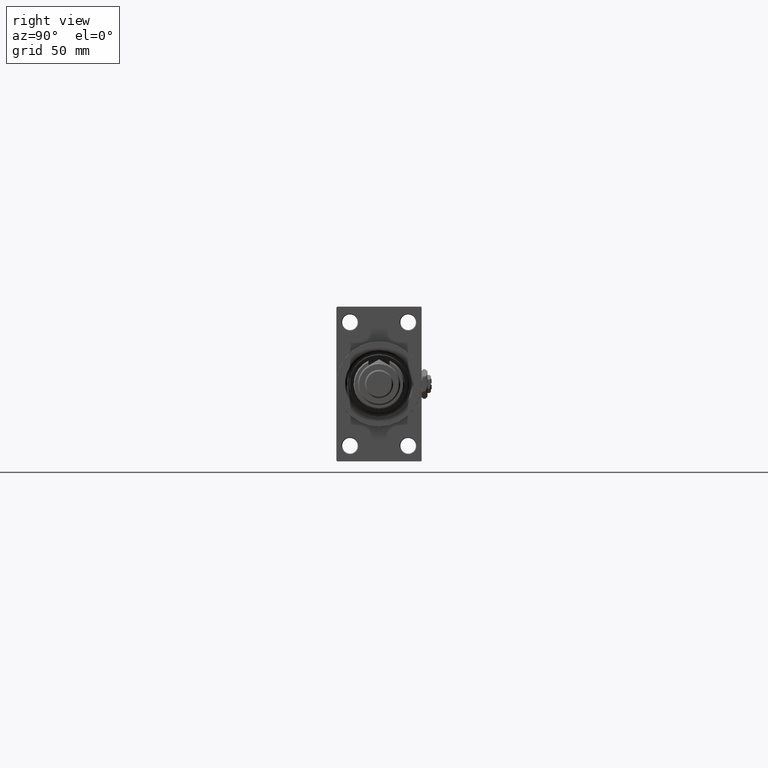
[diagram: clean part render]
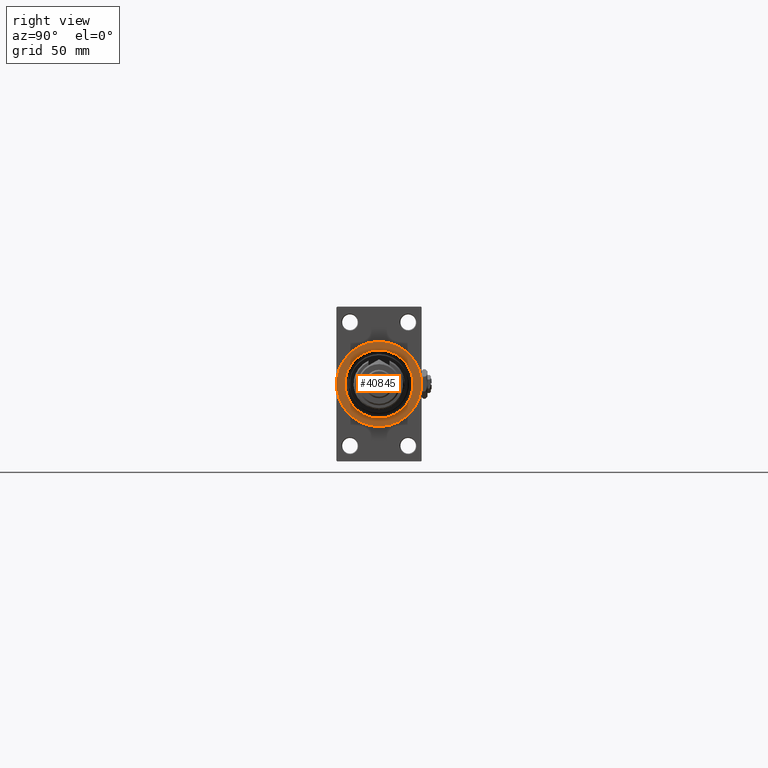
[diagram: same view with one face highlighted and labeled with its STEP entity id]
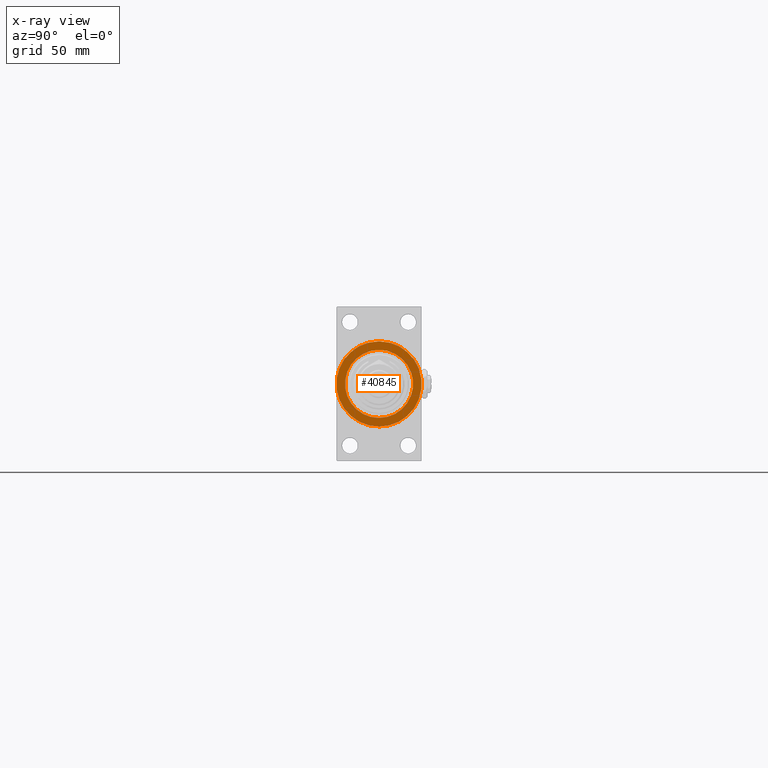
[diagram: x-ray of the same camera — body ghosted, the highlighted face saturated]
A machine part, right view. The second image highlights one B-rep face of the part: STEP entity #40845.
The next image is the same camera in x-ray: the body ghosted, the highlighted face saturated — about 0% of this face is hidden behind the body in this view.
In plain terms, the highlighted planar face has unit normal (1, 0, 0).
Its self-contained STEP definition (entity closure, byte-faithful):
#337 = CARTESIAN_POINT ( 'NONE',  ( 377.9999999999999432, 0.000000000000000000, 30.00000000000000000 ) ) ;
#1350 = VERTEX_POINT ( 'NONE', #16855 ) ;
#1602 = CARTESIAN_POINT ( 'NONE',  ( 377.9999999999999432, 0.000000000000000000, 0.000000000000000000 ) ) ;
#2200 = EDGE_CURVE ( 'NONE', #10081, #34722, #17458, .T. ) ;
#2407 = DIRECTION ( 'NONE',  ( 1.000000000000000000, 0.000000000000000000, 0.000000000000000000 ) ) ;
#6652 = DIRECTION ( 'NONE',  ( 0.000000000000000000, 0.000000000000000000, -1.000000000000000000 ) ) ;
#7155 = VERTEX_POINT ( 'NONE', #43635 ) ;
#9093 = EDGE_LOOP ( 'NONE', ( #27421, #25555 ) ) ;
#9485 = CARTESIAN_POINT ( 'NONE',  ( 377.9999999999999432, 0.000000000000000000, 0.000000000000000000 ) ) ;
#9916 = EDGE_CURVE ( 'NONE', #34722, #10081, #30306, .T. ) ;
#10081 = VERTEX_POINT ( 'NONE', #10326 ) ;
#10154 = CIRCLE ( 'NONE', #45742, 24.00000000000002487 ) ;
#10326 = CARTESIAN_POINT ( 'NONE',  ( 377.9999999999999432, 3.673940397442059178E-15, -30.00000000000000000 ) ) ;
#11401 = PLANE ( 'NONE',  #27948 ) ;
#14335 = FACE_OUTER_BOUND ( 'NONE', #9093, .T. ) ;
#15384 = CARTESIAN_POINT ( 'NONE',  ( 377.9999999999999432, 0.000000000000000000, 0.000000000000000000 ) ) ;
#16855 = CARTESIAN_POINT ( 'NONE',  ( 377.9999999999999432, 0.000000000000000000, -24.00000000000002487 ) ) ;
#17458 = CIRCLE ( 'NONE', #24210, 30.00000000000000000 ) ;
#17633 = AXIS2_PLACEMENT_3D ( 'NONE', #1602, #33947, #37411 ) ;
#24210 = AXIS2_PLACEMENT_3D ( 'NONE', #9485, #25649, #48736 ) ;
#24896 = ORIENTED_EDGE ( 'NONE', *, *, #41149, .T. ) ;
#25555 = ORIENTED_EDGE ( 'NONE', *, *, #2200, .T. ) ;
#25649 = DIRECTION ( 'NONE',  ( 1.000000000000000000, 0.000000000000000000, 0.000000000000000000 ) ) ;
#26926 = DIRECTION ( 'NONE',  ( -1.000000000000000000, -0.000000000000000000, -0.000000000000000000 ) ) ;
#27421 = ORIENTED_EDGE ( 'NONE', *, *, #9916, .T. ) ;
#27948 = AXIS2_PLACEMENT_3D ( 'NONE', #15384, #2407, #6652 ) ;
#30306 = CIRCLE ( 'NONE', #17633, 30.00000000000000000 ) ;
#30569 = EDGE_CURVE ( 'NONE', #1350, #7155, #33642, .T. ) ;
#32983 = CARTESIAN_POINT ( 'NONE',  ( 377.9999999999999432, 0.000000000000000000, 0.000000000000000000 ) ) ;
#33642 = CIRCLE ( 'NONE', #44656, 24.00000000000002487 ) ;
#33947 = DIRECTION ( 'NONE',  ( 1.000000000000000000, 0.000000000000000000, 0.000000000000000000 ) ) ;
#34017 = DIRECTION ( 'NONE',  ( -1.000000000000000000, -0.000000000000000000, -0.000000000000000000 ) ) ;
#34722 = VERTEX_POINT ( 'NONE', #337 ) ;
#35155 = EDGE_LOOP ( 'NONE', ( #44498, #24896 ) ) ;
#37411 = DIRECTION ( 'NONE',  ( 0.000000000000000000, 0.000000000000000000, -1.000000000000000000 ) ) ;
#40845 = ADVANCED_FACE ( 'NONE', ( #51446, #14335 ), #11401, .T. ) ;
#41149 = EDGE_CURVE ( 'NONE', #7155, #1350, #10154, .T. ) ;
#43635 = CARTESIAN_POINT ( 'NONE',  ( 377.9999999999999432, 2.939152317953650655E-15, 24.00000000000002487 ) ) ;
#44498 = ORIENTED_EDGE ( 'NONE', *, *, #30569, .T. ) ;
#44656 = AXIS2_PLACEMENT_3D ( 'NONE', #32983, #34017, #45945 ) ;
#45742 = AXIS2_PLACEMENT_3D ( 'NONE', #47078, #26926, #48128 ) ;
#45945 = DIRECTION ( 'NONE',  ( 0.000000000000000000, 0.000000000000000000, -1.000000000000000000 ) ) ;
#47078 = CARTESIAN_POINT ( 'NONE',  ( 377.9999999999999432, 0.000000000000000000, 0.000000000000000000 ) ) ;
#48128 = DIRECTION ( 'NONE',  ( 0.000000000000000000, 0.000000000000000000, -1.000000000000000000 ) ) ;
#48736 = DIRECTION ( 'NONE',  ( 0.000000000000000000, 0.000000000000000000, -1.000000000000000000 ) ) ;
#51446 = FACE_BOUND ( 'NONE', #35155, .T. ) ;